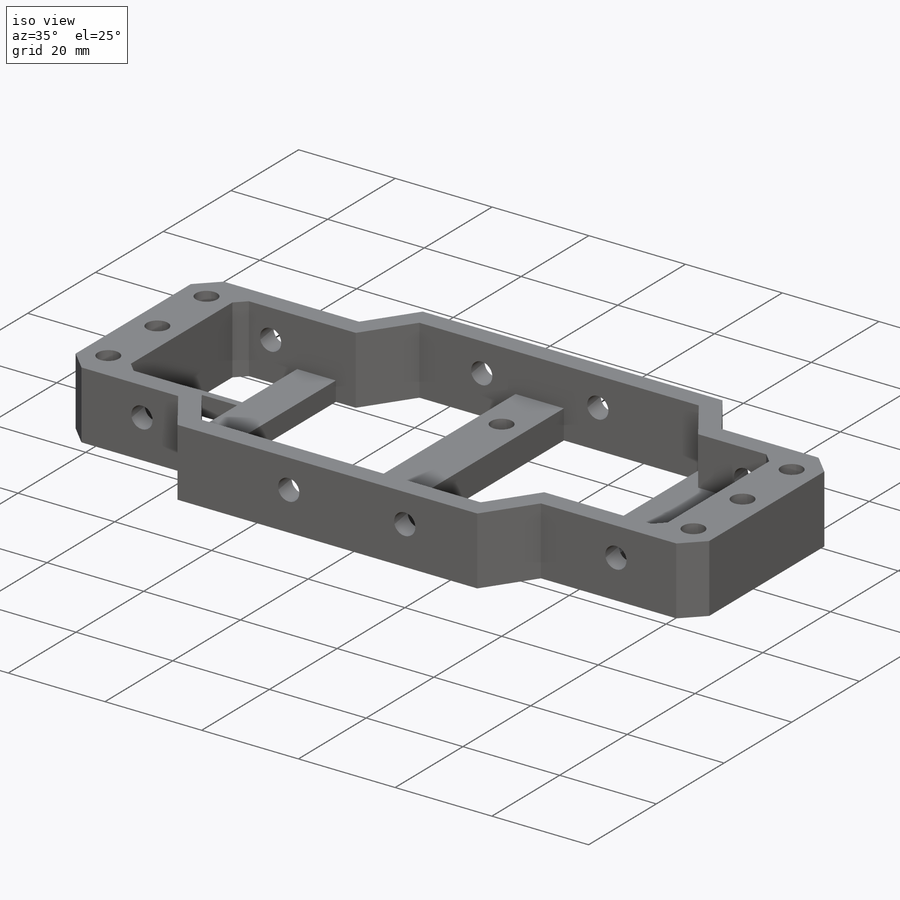
[diagram: iso view]
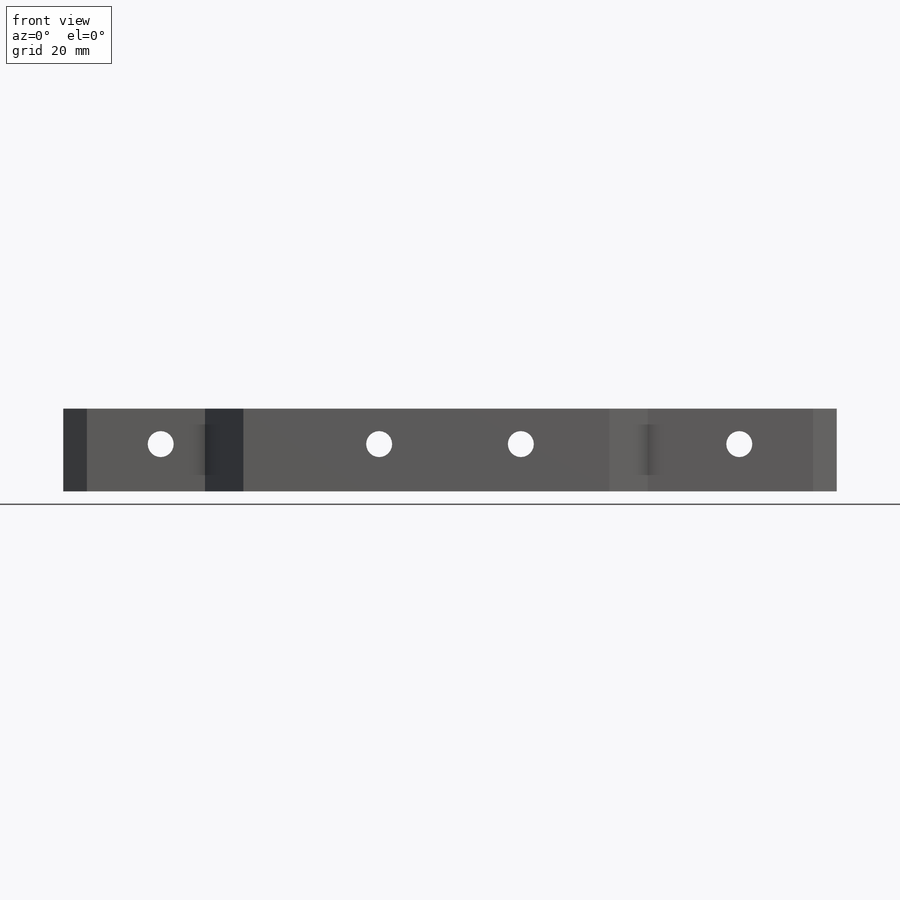
[diagram: front view]
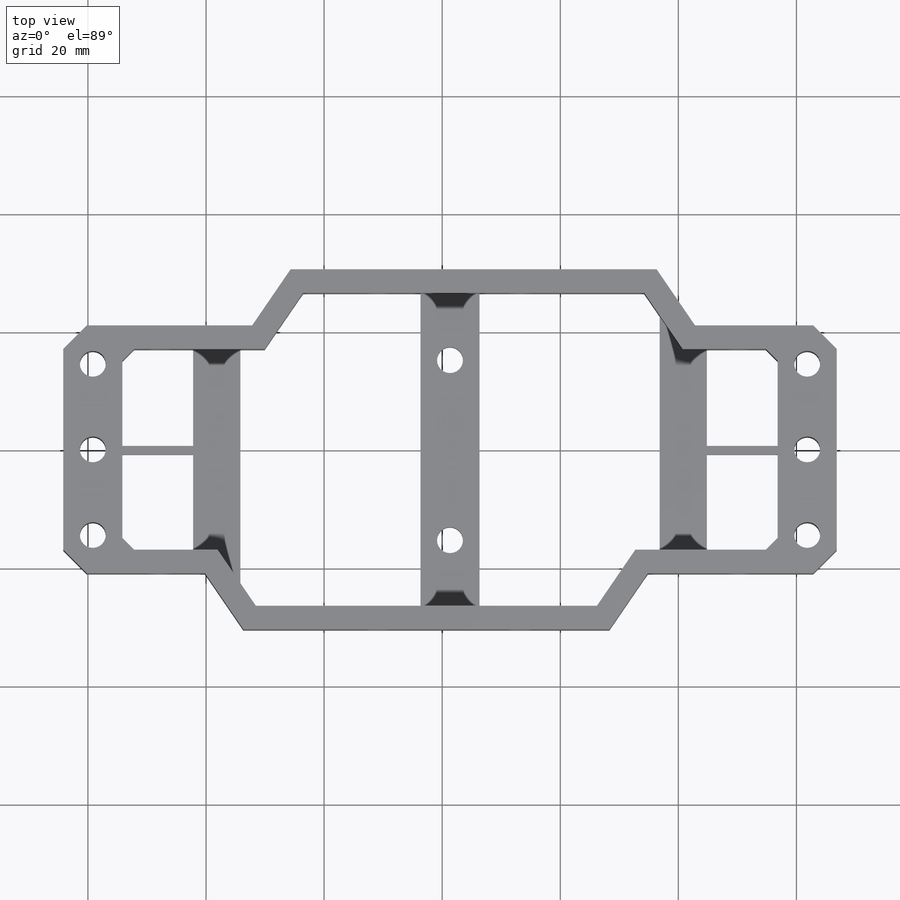
[diagram: top view]
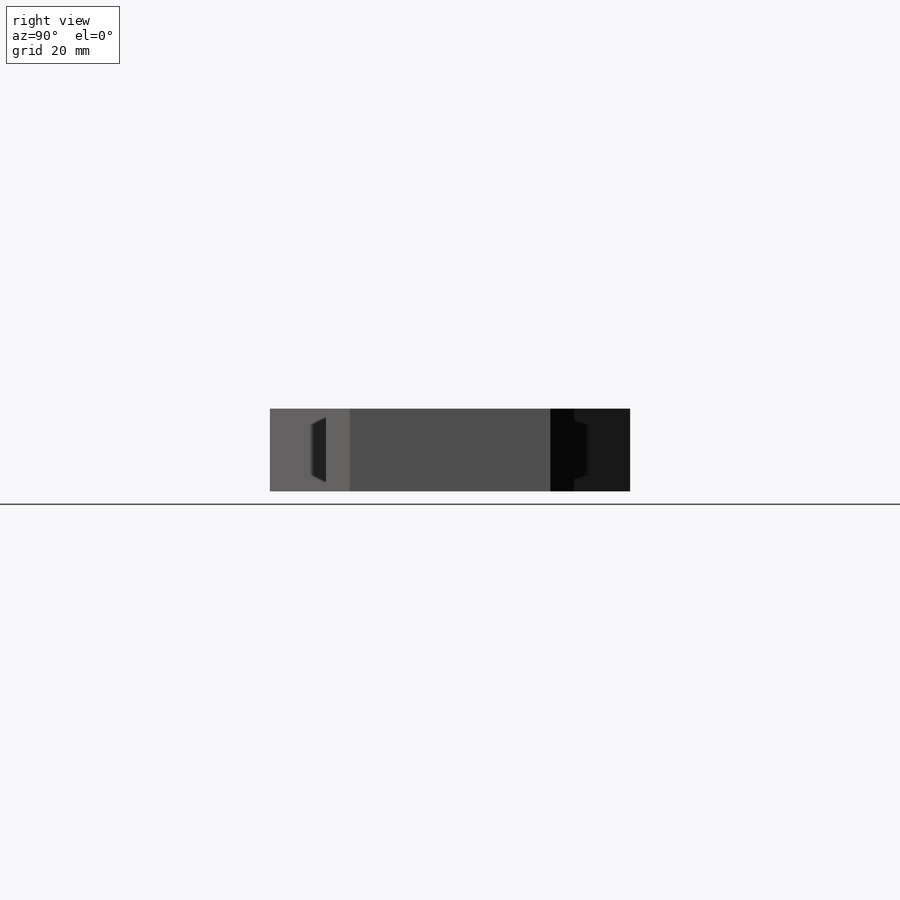
[diagram: right view]
SOLIDWORKS PART (.sldprt)
format: sldprt  version: not decoded by parser v0  size: 444,928 bytes
history: native  units: mm
features: sketch x6, extrude x3, cut_extrude x3, chamfer x2, material x1 (+11 scaffold rows collapsed)
feature tree (26):
  scaffold x11  (default folders/planes/origin — collapsed)
  material  "Material <not specified>"
  sketch  "Sketch1"  dims[c1.D1=131.0mm c1.D2=42.0mm c1.D3=32.0mm c1.D4=34.0mm c1.D5=4.0mm c1.D6=24.0mm c1.D7=24.0mm c1.D8=32.0mm c1.D9=10.0mm c1.D10=4.0mm c1.D11=10.0mm c1.D12=62.0mm c1.D13=62.0mm c1.D14=6.5mm c1.D15=61.0mm c1.D16=9.5mm c1.D17=6.5mm c1.D18=4.0mm c1.D19=4.0mm c2.D18=4.0mm c2.D19=4.0mm c2.D20=4.0mm c2.D21=4.0mm c2.D22=4.0mm c2.D23=4.0mm c2.D24=~11.510864mm c3.D24=~2.688506deg c4.D24=4.0mm c4.D25=42.0mm]
  extrude  "Boss-Extrude1"  Depth=14mm
  sketch  "Sketch2"  dims[c1.D1=4.4mm c1.D2=4.4mm c1.D3=4.4mm c1.D4=4.4mm c1.D5=4.4mm c1.D6=4.4mm c1.D10=4.4mm c1.D16=4.4mm c1.D17=4.4mm c1.D18=4.4mm c1.D7=6.5mm c1.D8=21.0mm c1.D9=6.5mm c2.D10=6.5mm c2.D11=21.0mm c2.D12=6.5mm c2.D13=5.0mm c2.D14=5.0mm c2.D15=5.0mm c2.D16=5.0mm c2.D17=5.0mm c2.D18=5.0mm]
  cut_extrude  "Cut-Extrude1"  [1 undecoded]
  sketch  "Sketch5"  dims[c1.D1=4.4mm c1.D2=4.4mm c1.D3=4.4mm c1.D4=4.4mm c1.D6=4.4mm c1.D7=4.4mm c1.D8=4.4mm c1.D9=4.4mm c1.D10=4.4mm c1.D11=4.4mm c1.D5=16.5mm c2.D6=6.0mm c2.D7=6.0mm c2.D8=6.0mm c2.D9=6.0mm c2.D10=16.5mm c2.D11=24.0mm c2.D12=53.5mm]
  cut_extrude  "Cut-Extrude2"  [1 undecoded]
  sketch  "Sketch6"  dims[D1=10.0mm D2=7.0mm D3=6.0mm]
  extrude  "Boss-Extrude2"  [1 undecoded]
  sketch  "Sketch7"  dims[c1.D5=4.4mm c1.D9=4.4mm c1.D11=4.4mm c1.D1=12.0mm c1.D2=16.25mm c1.D3=16.25mm c1.D4=8.0mm c1.D6=12.0mm c1.D7=16.25mm c1.D8=8.0mm c1.D10=4.0mm c2.D11=4.0mm]
  extrude  "Boss-Extrude3"  Depth=4mm
  sketch  "Sketch8"  dims[c1.D1=4.4mm c1.D2=4.4mm c1.D3=4.4mm c1.D4=4.4mm c1.D6=4.4mm c2.D3=15.25mm c2.D4=15.25mm c2.D5=5.0mm c2.D6=5.0mm]
  cut_extrude  "Cut-Extrude3"  [1 undecoded]
  chamfer  "Chamfer1"  Distance=4mm Angle=45deg
  chamfer  "Chamfer2"  Distance=2mm Angle=45deg
decode coverage: 10 of 14 modeling features carry decoded parameters
note: ~ marks probable driven/reference dimensions
note: 4 parameter values undecoded
summary: no parameter record found for 4 features
note: suppression state not decoded; provenance and decode notes live in map.json
